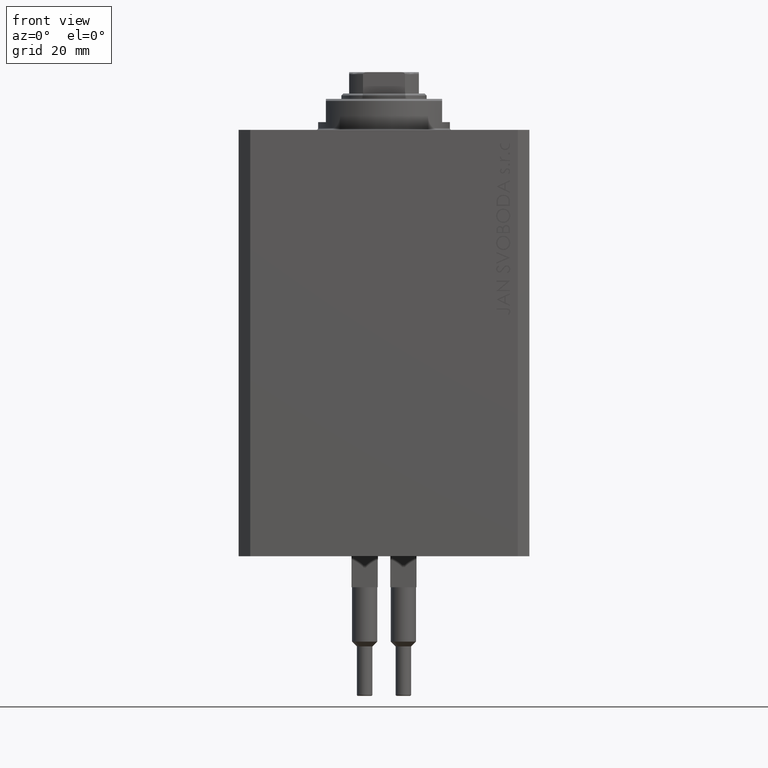
[diagram: clean part render]
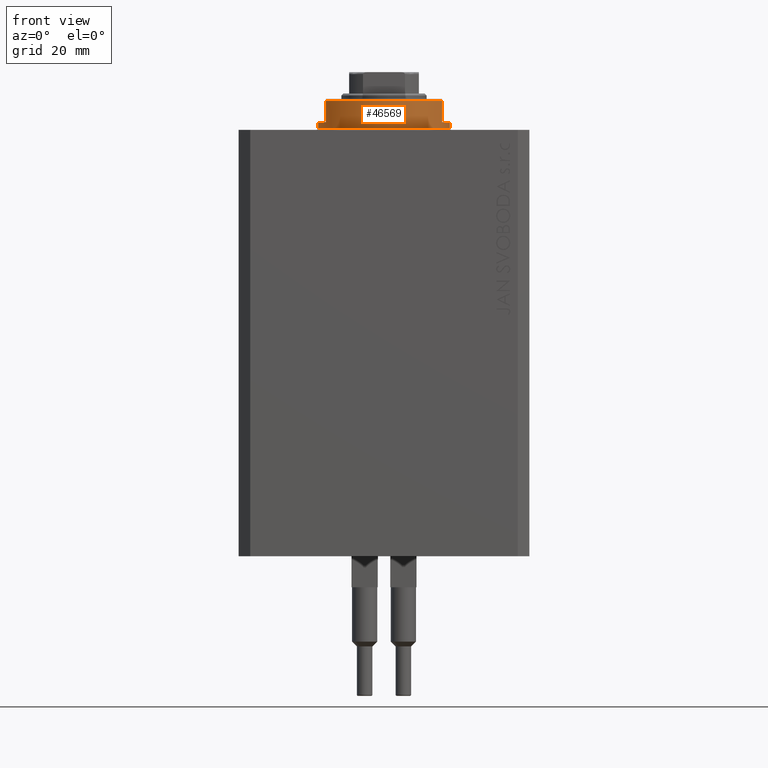
[diagram: same view with one face highlighted and labeled with its STEP entity id]
A machine part, front view. The second image highlights one B-rep face of the part: STEP entity #46569.
In plain terms, the highlighted cylindrical surface (partial cylindrical patch) has radius 17 mm, axis along (0, 0, -1).
Its self-contained STEP definition (entity closure, byte-faithful):
#83 = EDGE_LOOP ( 'NONE', ( #12577, #10347, #4181, #28995, #27620, #34576, #27756, #45960 ) ) ;
#299 = DIRECTION ( 'NONE',  ( 0.000000000000000000, 0.000000000000000000, -1.000000000000000000 ) ) ;
#528 = EDGE_CURVE ( 'NONE', #32033, #31263, #45662, .T. ) ;
#593 = EDGE_CURVE ( 'NONE', #1441, #7736, #13841, .T. ) ;
#1282 = LINE ( 'NONE', #37966, #23488 ) ;
#1347 = CYLINDRICAL_SURFACE ( 'NONE', #28735, 17.00000000000000000 ) ;
#1441 = VERTEX_POINT ( 'NONE', #19085 ) ;
#1795 = EDGE_CURVE ( 'NONE', #10223, #14453, #23976, .T. ) ;
#2288 = DIRECTION ( 'NONE',  ( 0.000000000000000000, 0.000000000000000000, 1.000000000000000000 ) ) ;
#4181 = ORIENTED_EDGE ( 'NONE', *, *, #32320, .T. ) ;
#4666 = CARTESIAN_POINT ( 'NONE',  ( 0.000000000000000000, 0.000000000000000000, -2.000000000000000000 ) ) ;
#5535 = CARTESIAN_POINT ( 'NONE',  ( 17.00000000000000000, 0.000000000000000000, -2.000000000000000000 ) ) ;
#5661 = DIRECTION ( 'NONE',  ( 0.000000000000000000, 0.000000000000000000, -1.000000000000000000 ) ) ;
#5808 = EDGE_CURVE ( 'NONE', #45306, #23714, #6154, .T. ) ;
#6154 = CIRCLE ( 'NONE', #24770, 17.00000000000000000 ) ;
#7736 = VERTEX_POINT ( 'NONE', #46964 ) ;
#8176 = LINE ( 'NONE', #29803, #39218 ) ;
#10223 = VERTEX_POINT ( 'NONE', #20885 ) ;
#10347 = ORIENTED_EDGE ( 'NONE', *, *, #593, .F. ) ;
#10686 = DIRECTION ( 'NONE',  ( 0.000000000000000000, 0.000000000000000000, -1.000000000000000000 ) ) ;
#12577 = ORIENTED_EDGE ( 'NONE', *, *, #12823, .F. ) ;
#12823 = EDGE_CURVE ( 'NONE', #7736, #14453, #16416, .T. ) ;
#13841 = CIRCLE ( 'NONE', #46440, 17.00000000000000000 ) ;
#14453 = VERTEX_POINT ( 'NONE', #31718 ) ;
#16041 = DIRECTION ( 'NONE',  ( -0.000000000000000000, -0.000000000000000000, -1.000000000000000000 ) ) ;
#16416 = LINE ( 'NONE', #38533, #36628 ) ;
#16633 = DIRECTION ( 'NONE',  ( 1.000000000000000000, 0.000000000000000000, 0.000000000000000000 ) ) ;
#17845 = EDGE_CURVE ( 'NONE', #45306, #10223, #23146, .T. ) ;
#19085 = CARTESIAN_POINT ( 'NONE',  ( -14.99999999999999645, -8.000000000000003553, -2.000000000000000000 ) ) ;
#20885 = CARTESIAN_POINT ( 'NONE',  ( 17.00000000000000000, 0.000000000000000000, -0.5000000000000004441 ) ) ;
#21371 = CARTESIAN_POINT ( 'NONE',  ( 0.000000000000000000, 0.000000000000000000, -2.000000000000000000 ) ) ;
#23146 = LINE ( 'NONE', #37974, #40529 ) ;
#23488 = VECTOR ( 'NONE', #5661, 1000.000000000000000 ) ;
#23688 = FACE_OUTER_BOUND ( 'NONE', #83, .T. ) ;
#23714 = VERTEX_POINT ( 'NONE', #45891 ) ;
#23874 = EDGE_CURVE ( 'NONE', #23714, #31263, #8176, .T. ) ;
#23976 = CIRCLE ( 'NONE', #37926, 17.00000000000000000 ) ;
#24770 = AXIS2_PLACEMENT_3D ( 'NONE', #4666, #299, #37456 ) ;
#26514 = CARTESIAN_POINT ( 'NONE',  ( 0.000000000000000000, 0.000000000000000000, -0.5000000000000004441 ) ) ;
#27094 = DIRECTION ( 'NONE',  ( -0.000000000000000000, -0.000000000000000000, 1.000000000000000000 ) ) ;
#27620 = ORIENTED_EDGE ( 'NONE', *, *, #23874, .F. ) ;
#27756 = ORIENTED_EDGE ( 'NONE', *, *, #17845, .T. ) ;
#28735 = AXIS2_PLACEMENT_3D ( 'NONE', #45088, #27094, #16633 ) ;
#28995 = ORIENTED_EDGE ( 'NONE', *, *, #528, .T. ) ;
#29803 = CARTESIAN_POINT ( 'NONE',  ( 15.00000000000000000, -8.000000000000001776, -8.000000000000000000 ) ) ;
#30991 = DIRECTION ( 'NONE',  ( -0.000000000000000000, -0.000000000000000000, 1.000000000000000000 ) ) ;
#31263 = VERTEX_POINT ( 'NONE', #35075 ) ;
#31718 = CARTESIAN_POINT ( 'NONE',  ( -17.00000000000000000, 2.081899558550500280E-15, -0.5000000000000004441 ) ) ;
#31842 = DIRECTION ( 'NONE',  ( -1.000000000000000000, 0.000000000000000000, 0.000000000000000000 ) ) ;
#32033 = VERTEX_POINT ( 'NONE', #48006 ) ;
#32320 = EDGE_CURVE ( 'NONE', #1441, #32033, #1282, .T. ) ;
#34553 = DIRECTION ( 'NONE',  ( -0.000000000000000000, -0.000000000000000000, 1.000000000000000000 ) ) ;
#34576 = ORIENTED_EDGE ( 'NONE', *, *, #5808, .F. ) ;
#35075 = CARTESIAN_POINT ( 'NONE',  ( 15.00000000000000000, -8.000000000000001776, -7.500000000000013323 ) ) ;
#36338 = AXIS2_PLACEMENT_3D ( 'NONE', #39689, #2288, #46518 ) ;
#36628 = VECTOR ( 'NONE', #30991, 1000.000000000000000 ) ;
#37456 = DIRECTION ( 'NONE',  ( -1.000000000000000000, 0.000000000000000000, 0.000000000000000000 ) ) ;
#37574 = DIRECTION ( 'NONE',  ( 0.000000000000000000, 0.000000000000000000, -1.000000000000000000 ) ) ;
#37926 = AXIS2_PLACEMENT_3D ( 'NONE', #26514, #16041, #41586 ) ;
#37966 = CARTESIAN_POINT ( 'NONE',  ( -15.00000000000000000, -8.000000000000001776, -8.000000000000000000 ) ) ;
#37974 = CARTESIAN_POINT ( 'NONE',  ( 17.00000000000000000, 0.000000000000000000, -8.000000000000000000 ) ) ;
#38533 = CARTESIAN_POINT ( 'NONE',  ( -17.00000000000000000, 2.081899558550500280E-15, -8.000000000000000000 ) ) ;
#39218 = VECTOR ( 'NONE', #37574, 1000.000000000000000 ) ;
#39689 = CARTESIAN_POINT ( 'NONE',  ( 0.000000000000000000, 0.000000000000000000, -7.500000000000013323 ) ) ;
#40529 = VECTOR ( 'NONE', #34553, 1000.000000000000000 ) ;
#41586 = DIRECTION ( 'NONE',  ( 1.000000000000000000, 0.000000000000000000, 0.000000000000000000 ) ) ;
#45088 = CARTESIAN_POINT ( 'NONE',  ( 0.000000000000000000, 0.000000000000000000, -8.000000000000000000 ) ) ;
#45306 = VERTEX_POINT ( 'NONE', #5535 ) ;
#45662 = CIRCLE ( 'NONE', #36338, 17.00000000000000000 ) ;
#45891 = CARTESIAN_POINT ( 'NONE',  ( 14.99999999999999645, -8.000000000000003553, -2.000000000000000000 ) ) ;
#45960 = ORIENTED_EDGE ( 'NONE', *, *, #1795, .T. ) ;
#46440 = AXIS2_PLACEMENT_3D ( 'NONE', #21371, #10686, #31842 ) ;
#46518 = DIRECTION ( 'NONE',  ( -1.000000000000000000, 0.000000000000000000, 0.000000000000000000 ) ) ;
#46569 = ADVANCED_FACE ( 'NONE', ( #23688 ), #1347, .T. ) ;
#46964 = CARTESIAN_POINT ( 'NONE',  ( -17.00000000000000000, 2.081899558550500280E-15, -2.000000000000000000 ) ) ;
#48006 = CARTESIAN_POINT ( 'NONE',  ( -15.00000000000000000, -8.000000000000001776, -7.500000000000014211 ) ) ;